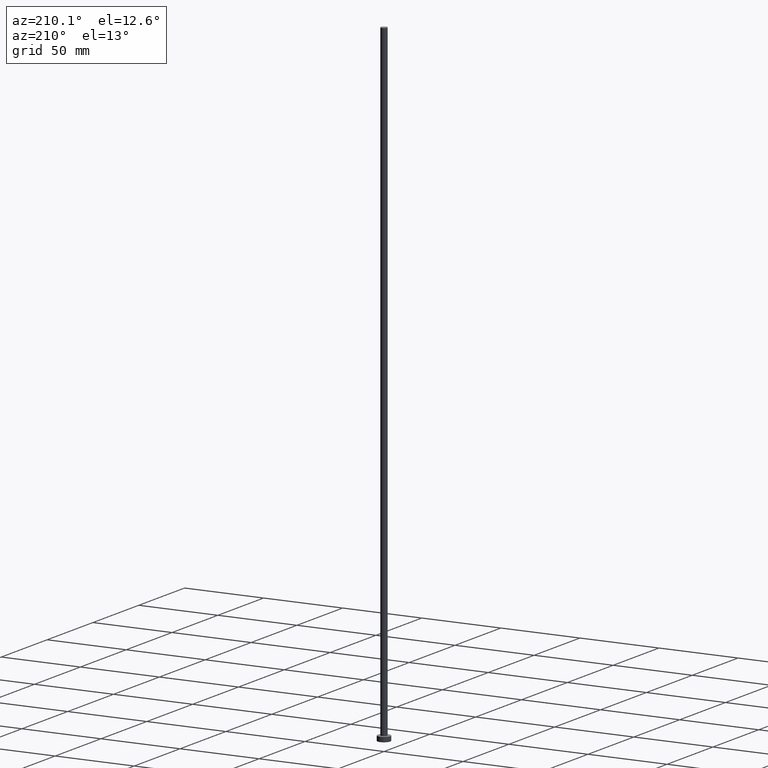
[diagram: clean part render]
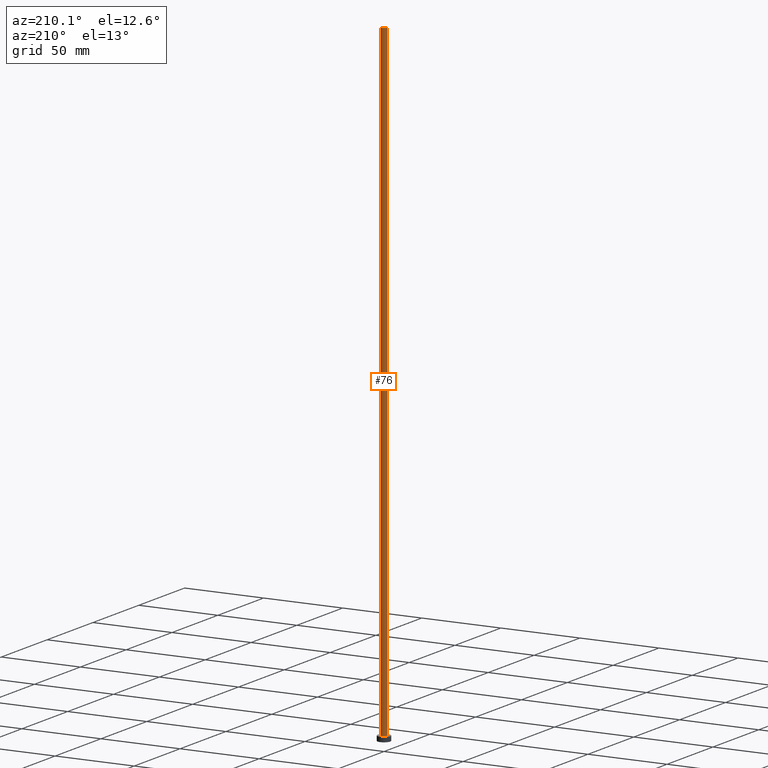
[diagram: same view with one face highlighted and labeled with its STEP entity id]
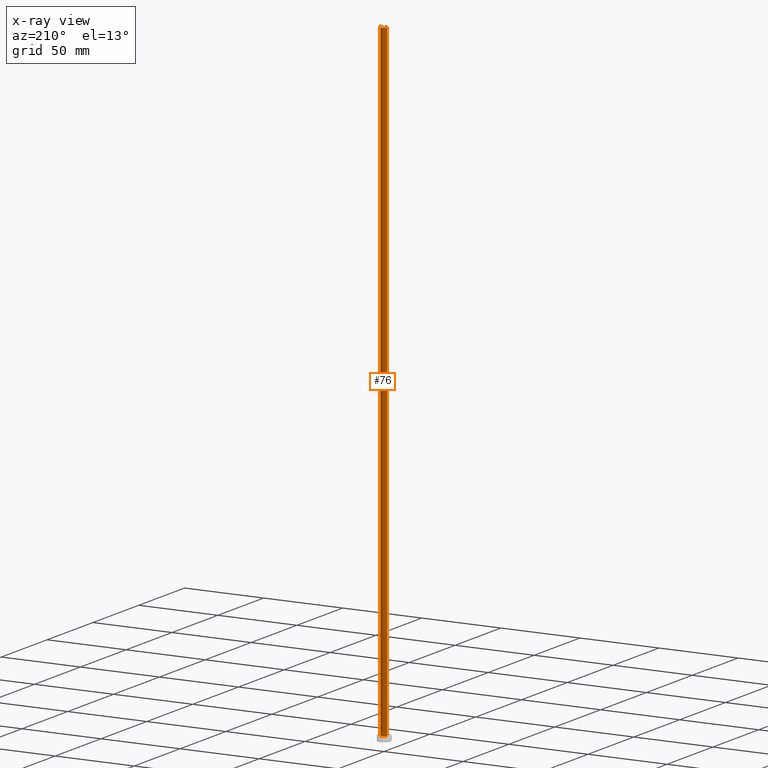
[diagram: x-ray of the same camera — body ghosted, the highlighted face saturated]
A machine part, auxiliary view. The second image highlights one B-rep face of the part: STEP entity #76.
The next image is the same camera in x-ray: the body ghosted, the highlighted face saturated — about 0% of this face is hidden behind the body in this view.
In plain terms, the highlighted cylindrical surface (edge-blend (fillet) strip) has radius 2 mm, axis along (-0, -0, -1).
Its self-contained STEP definition (entity closure, byte-faithful):
#4 = DIRECTION ( 'NONE',  ( 0.000000000000000000, 0.000000000000000000, 1.000000000000000000 ) ) ;
#11 = LINE ( 'NONE', #72, #87 ) ;
#15 = EDGE_CURVE ( 'NONE', #120, #63, #11, .T. ) ;
#17 = CARTESIAN_POINT ( 'NONE',  ( 0.000000000000000000, 0.000000000000000000, 400.0000000000000000 ) ) ;
#21 = ORIENTED_EDGE ( 'NONE', *, *, #184, .F. ) ;
#23 = ORIENTED_EDGE ( 'NONE', *, *, #236, .T. ) ;
#27 = DIRECTION ( 'NONE',  ( -1.000000000000000000, 0.000000000000000000, 0.000000000000000000 ) ) ;
#28 = AXIS2_PLACEMENT_3D ( 'NONE', #244, #203, #27 ) ;
#49 = VERTEX_POINT ( 'NONE', #165 ) ;
#52 = CARTESIAN_POINT ( 'NONE',  ( 0.000000000000000000, 0.000000000000000000, 3.000000000000000000 ) ) ;
#57 = CYLINDRICAL_SURFACE ( 'NONE', #28, 2.000000000000000000 ) ;
#61 = ORIENTED_EDGE ( 'NONE', *, *, #82, .F. ) ;
#63 = VERTEX_POINT ( 'NONE', #132 ) ;
#72 = CARTESIAN_POINT ( 'NONE',  ( 2.000000000000000000, 2.449293598294706414E-16, 400.0000000000000000 ) ) ;
#73 = FACE_OUTER_BOUND ( 'NONE', #214, .T. ) ;
#76 = ADVANCED_FACE ( 'NONE', ( #73 ), #57, .T. ) ;
#78 = DIRECTION ( 'NONE',  ( 1.000000000000000000, 0.000000000000000000, 0.000000000000000000 ) ) ;
#82 = EDGE_CURVE ( 'NONE', #83, #49, #105, .T. ) ;
#83 = VERTEX_POINT ( 'NONE', #209 ) ;
#87 = VECTOR ( 'NONE', #130, 1000.000000000000000 ) ;
#93 = CARTESIAN_POINT ( 'NONE',  ( 2.000000000000000000, 2.449293598294706414E-16, 400.0000000000000000 ) ) ;
#101 = ORIENTED_EDGE ( 'NONE', *, *, #15, .T. ) ;
#105 = LINE ( 'NONE', #108, #251 ) ;
#108 = CARTESIAN_POINT ( 'NONE',  ( -2.000000000000000000, 0.000000000000000000, 400.0000000000000000 ) ) ;
#120 = VERTEX_POINT ( 'NONE', #93 ) ;
#129 = AXIS2_PLACEMENT_3D ( 'NONE', #52, #4, #183 ) ;
#130 = DIRECTION ( 'NONE',  ( -0.000000000000000000, -0.000000000000000000, -1.000000000000000000 ) ) ;
#132 = CARTESIAN_POINT ( 'NONE',  ( 2.000000000000000000, 2.449293598294706414E-16, 3.000000000000000000 ) ) ;
#135 = DIRECTION ( 'NONE',  ( 0.000000000000000000, 0.000000000000000000, 1.000000000000000000 ) ) ;
#165 = CARTESIAN_POINT ( 'NONE',  ( -2.000000000000000000, 0.000000000000000000, 3.000000000000000000 ) ) ;
#176 = AXIS2_PLACEMENT_3D ( 'NONE', #17, #135, #78 ) ;
#183 = DIRECTION ( 'NONE',  ( 1.000000000000000000, 0.000000000000000000, 0.000000000000000000 ) ) ;
#184 = EDGE_CURVE ( 'NONE', #120, #83, #201, .T. ) ;
#201 = CIRCLE ( 'NONE', #176, 2.000000000000000000 ) ;
#203 = DIRECTION ( 'NONE',  ( -0.000000000000000000, -0.000000000000000000, -1.000000000000000000 ) ) ;
#209 = CARTESIAN_POINT ( 'NONE',  ( -2.000000000000000000, 0.000000000000000000, 400.0000000000000000 ) ) ;
#214 = EDGE_LOOP ( 'NONE', ( #21, #101, #23, #61 ) ) ;
#226 = CIRCLE ( 'NONE', #129, 2.000000000000000000 ) ;
#227 = DIRECTION ( 'NONE',  ( -0.000000000000000000, -0.000000000000000000, -1.000000000000000000 ) ) ;
#236 = EDGE_CURVE ( 'NONE', #63, #49, #226, .T. ) ;
#244 = CARTESIAN_POINT ( 'NONE',  ( 0.000000000000000000, 0.000000000000000000, 400.0000000000000000 ) ) ;
#251 = VECTOR ( 'NONE', #227, 1000.000000000000000 ) ;